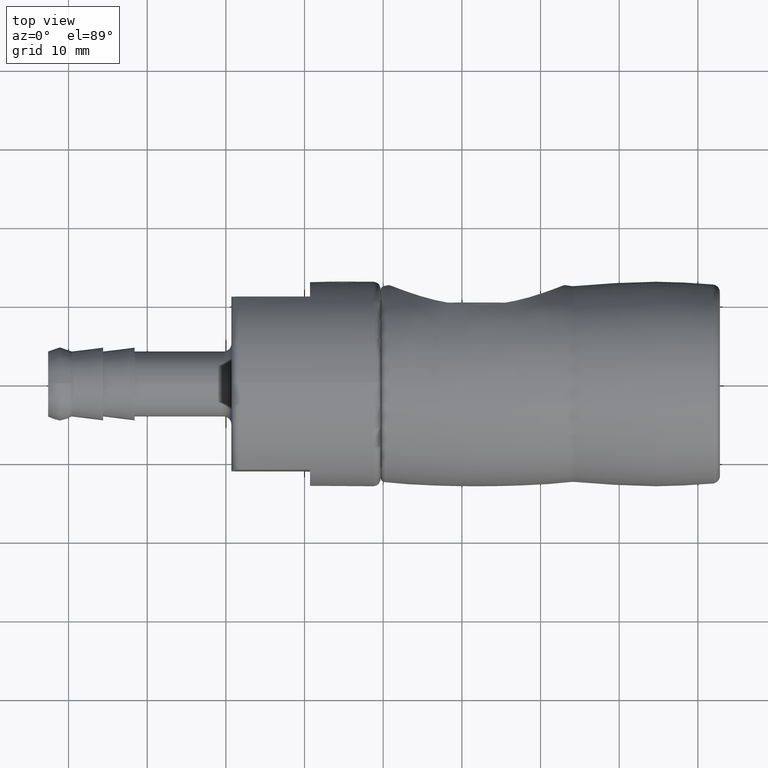
[diagram: clean part render]
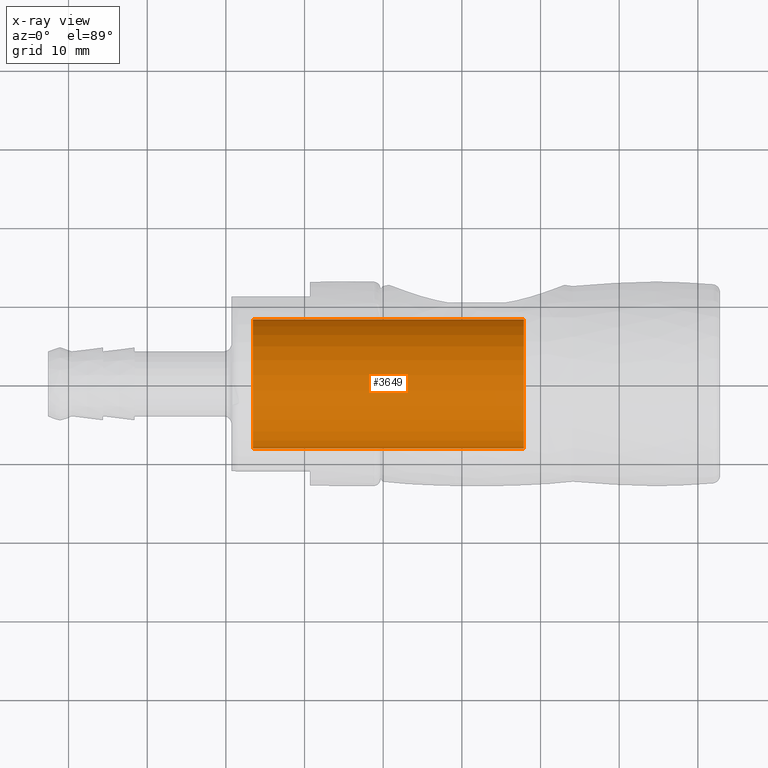
[diagram: x-ray — body ghosted, one internal face saturated and labeled with its STEP entity id]
A machine part, top view, then the same camera in x-ray: the body is ghosted and one INTERNAL B-rep face — a face not visible from any outside direction — is saturated and labeled: STEP entity #3649.
In plain terms, the highlighted cylindrical surface (bore or boss wall) has radius 8.2021 mm, axis along (1, 0, 0).
Its self-contained STEP definition (entity closure, byte-faithful):
#456=LINE('',#12075,#595);
#595=VECTOR('',#5101,8.20214816505653);
#677=CYLINDRICAL_SURFACE('',#4125,8.20214816505653);
#899=FACE_OUTER_BOUND('',#1142,.T.);
#1142=EDGE_LOOP('',(#3245,#3246,#3247,#3248,#3249,#3250));
#1396=CIRCLE('',#4123,8.20214816505653);
#1397=CIRCLE('',#4124,8.20214816505653);
#1398=CIRCLE('',#4126,8.20214816505653);
#1399=CIRCLE('',#4127,8.20214816505653);
#1781=VERTEX_POINT('',#12065);
#1782=VERTEX_POINT('',#12066);
#1783=VERTEX_POINT('',#12071);
#1784=VERTEX_POINT('',#12072);
#2287=EDGE_CURVE('',#1781,#1782,#1396,.T.);
#2288=EDGE_CURVE('',#1782,#1781,#1397,.T.);
#2290=EDGE_CURVE('',#1783,#1784,#1398,.T.);
#2291=EDGE_CURVE('',#1784,#1783,#1399,.T.);
#2292=EDGE_CURVE('',#1784,#1782,#456,.T.);
#3245=ORIENTED_EDGE('',*,*,#2290,.F.);
#3246=ORIENTED_EDGE('',*,*,#2291,.F.);
#3247=ORIENTED_EDGE('',*,*,#2292,.T.);
#3248=ORIENTED_EDGE('',*,*,#2288,.T.);
#3249=ORIENTED_EDGE('',*,*,#2287,.T.);
#3250=ORIENTED_EDGE('',*,*,#2292,.F.);
#3649=ADVANCED_FACE('',(#899),#677,.T.);
#4123=AXIS2_PLACEMENT_3D('',#12067,#5090,#5091);
#4124=AXIS2_PLACEMENT_3D('',#12068,#5092,#5093);
#4125=AXIS2_PLACEMENT_3D('',#12070,#5095,#5096);
#4126=AXIS2_PLACEMENT_3D('',#12073,#5097,#5098);
#4127=AXIS2_PLACEMENT_3D('',#12074,#5099,#5100);
#5090=DIRECTION('center_axis',(1.,0.,0.));
#5091=DIRECTION('ref_axis',(0.,0.,-1.));
#5092=DIRECTION('center_axis',(1.,0.,0.));
#5093=DIRECTION('ref_axis',(0.,0.,-1.));
#5095=DIRECTION('center_axis',(1.,0.,0.));
#5096=DIRECTION('ref_axis',(0.,1.,0.));
#5097=DIRECTION('center_axis',(1.,0.,0.));
#5098=DIRECTION('ref_axis',(0.,0.,-1.));
#5099=DIRECTION('center_axis',(1.,0.,0.));
#5100=DIRECTION('ref_axis',(0.,0.,-1.));
#5101=DIRECTION('',(-1.,0.,0.));
#12065=CARTESIAN_POINT('',(-6.57664771516973,8.20214816505653,0.));
#12066=CARTESIAN_POINT('',(-6.57664771516973,-8.20214816505653,-1.00447344964688E-15));
#12067=CARTESIAN_POINT('Origin',(-6.57664771516973,0.,0.));
#12068=CARTESIAN_POINT('Origin',(-6.57664771516973,0.,0.));
#12070=CARTESIAN_POINT('Origin',(10.6537743278989,0.,0.));
#12071=CARTESIAN_POINT('',(27.8841963709676,8.20214816505653,0.));
#12072=CARTESIAN_POINT('',(27.8841963709676,-8.20214816505653,-1.00447344964688E-15));
#12073=CARTESIAN_POINT('Origin',(27.8841963709676,0.,0.));
#12074=CARTESIAN_POINT('Origin',(27.8841963709676,0.,0.));
#12075=CARTESIAN_POINT('',(10.6537743278989,-8.20214816505653,-1.00447344964688E-15));